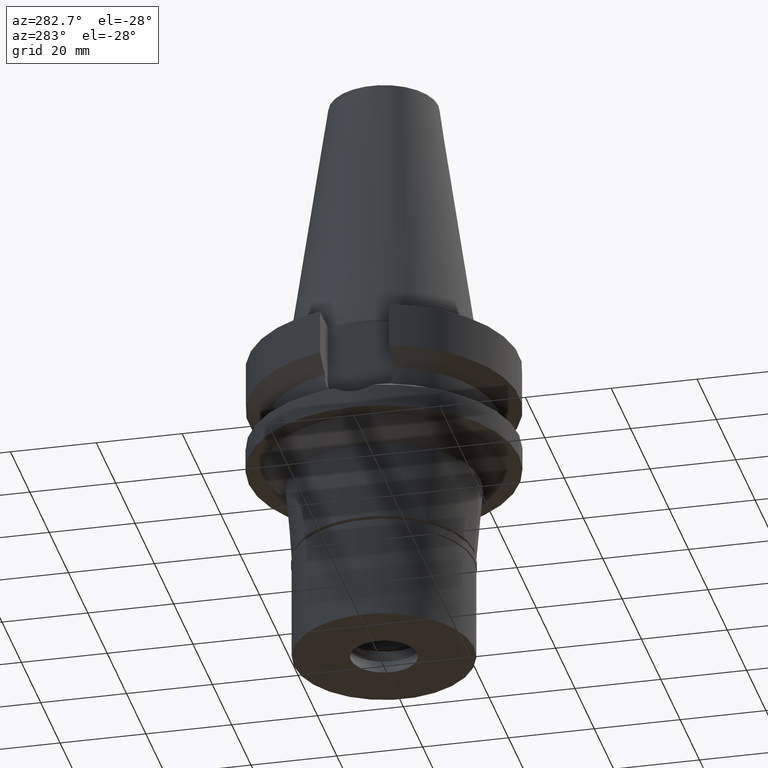
[diagram: clean part render]
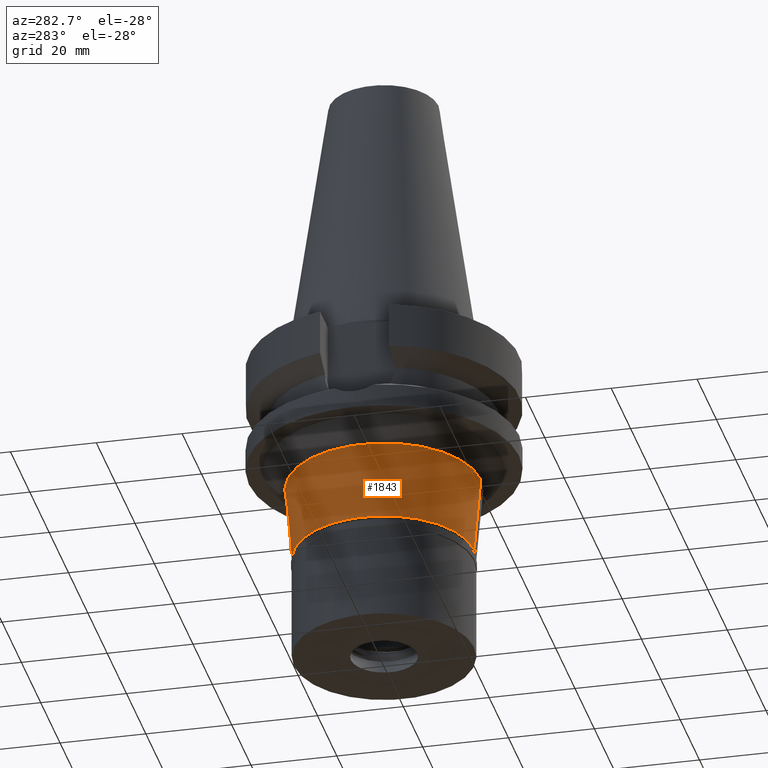
[diagram: same view with one face highlighted and labeled with its STEP entity id]
A machine part, auxiliary view. The second image highlights one B-rep face of the part: STEP entity #1843.
In plain terms, the highlighted conical surface has half-angle 5 deg.
Its self-contained STEP definition (entity closure, byte-faithful):
#3 = LINE ( 'NONE', #726, #1828 ) ;
#88 = LINE ( 'NONE', #1730, #375 ) ;
#118 = ORIENTED_EDGE ( 'NONE', *, *, #1165, .F. ) ;
#223 = EDGE_CURVE ( 'NONE', #2863, #3014, #2859, .T. ) ;
#282 = CARTESIAN_POINT ( 'NONE',  ( 0.0000000000000000000, 21.00000000000000000, -49.89999999999999858 ) ) ;
#364 = VERTEX_POINT ( 'NONE', #282 ) ;
#375 = VECTOR ( 'NONE', #550, 1000.000000000000227 ) ;
#542 = CIRCLE ( 'NONE', #1770, 21.00000000000000000 ) ;
#550 = DIRECTION ( 'NONE',  ( 0.0000000000000000000, 0.08715574274751627937, -0.9961946980917578687 ) ) ;
#569 = DIRECTION ( 'NONE',  ( 0.0000000000000000000, 0.0000000000000000000, -1.000000000000000000 ) ) ;
#570 = AXIS2_PLACEMENT_3D ( 'NONE', #2729, #569, #853 ) ;
#579 = CARTESIAN_POINT ( 'NONE',  ( 0.0000000000000000000, -22.56604707710999946, -32.00000000000000000 ) ) ;
#694 = ORIENTED_EDGE ( 'NONE', *, *, #2379, .T. ) ;
#726 = CARTESIAN_POINT ( 'NONE',  ( 0.0000000000000000000, 22.56604707710999946, -32.00000000000000000 ) ) ;
#849 = DIRECTION ( 'NONE',  ( 0.0000000000000000000, 1.000000000000000000, 0.0000000000000000000 ) ) ;
#853 = DIRECTION ( 'NONE',  ( 0.0000000000000000000, -1.000000000000000000, 0.0000000000000000000 ) ) ;
#855 = DIRECTION ( 'NONE',  ( 0.0000000000000000000, 1.000000000000000000, 0.0000000000000000000 ) ) ;
#864 = CARTESIAN_POINT ( 'NONE',  ( 0.0000000000000000000, 22.56604707710999946, -32.00000000000000000 ) ) ;
#920 = DIRECTION ( 'NONE',  ( 0.0000000000000000000, 0.0000000000000000000, 1.000000000000000000 ) ) ;
#992 = DIRECTION ( 'NONE',  ( 0.0000000000000000000, -0.08715574274751627937, -0.9961946980917578687 ) ) ;
#1041 = AXIS2_PLACEMENT_3D ( 'NONE', #1611, #920, #855 ) ;
#1165 = EDGE_CURVE ( 'NONE', #2863, #2476, #88, .T. ) ;
#1579 = ORIENTED_EDGE ( 'NONE', *, *, #223, .T. ) ;
#1599 = FACE_OUTER_BOUND ( 'NONE', #1644, .T. ) ;
#1611 = CARTESIAN_POINT ( 'NONE',  ( 0.0000000000000000000, 0.0000000000000000000, -40.95000000000000284 ) ) ;
#1644 = EDGE_LOOP ( 'NONE', ( #694, #118, #1579, #2901 ) ) ;
#1730 = CARTESIAN_POINT ( 'NONE',  ( 0.0000000000000000000, -22.56604707710999946, -32.00000000000000000 ) ) ;
#1770 = AXIS2_PLACEMENT_3D ( 'NONE', #2308, #2998, #849 ) ;
#1828 = VECTOR ( 'NONE', #992, 1000.000000000000227 ) ;
#1843 = ADVANCED_FACE ( 'NONE', ( #1599 ), #2424, .T. ) ;
#2308 = CARTESIAN_POINT ( 'NONE',  ( 0.0000000000000000000, 0.0000000000000000000, -49.89999999999999858 ) ) ;
#2379 = EDGE_CURVE ( 'NONE', #364, #2476, #542, .T. ) ;
#2424 = CONICAL_SURFACE ( 'NONE', #1041, 21.78302353855999840, 0.08726646259969973729 ) ;
#2476 = VERTEX_POINT ( 'NONE', #2546 ) ;
#2546 = CARTESIAN_POINT ( 'NONE',  ( 0.0000000000000000000, -21.00000000000000000, -49.89999999999999858 ) ) ;
#2660 = EDGE_CURVE ( 'NONE', #3014, #364, #3, .T. ) ;
#2729 = CARTESIAN_POINT ( 'NONE',  ( 0.0000000000000000000, 0.0000000000000000000, -32.00000000000000000 ) ) ;
#2859 = CIRCLE ( 'NONE', #570, 22.56604707710999946 ) ;
#2863 = VERTEX_POINT ( 'NONE', #579 ) ;
#2901 = ORIENTED_EDGE ( 'NONE', *, *, #2660, .T. ) ;
#2998 = DIRECTION ( 'NONE',  ( 0.0000000000000000000, 0.0000000000000000000, 1.000000000000000000 ) ) ;
#3014 = VERTEX_POINT ( 'NONE', #864 ) ;